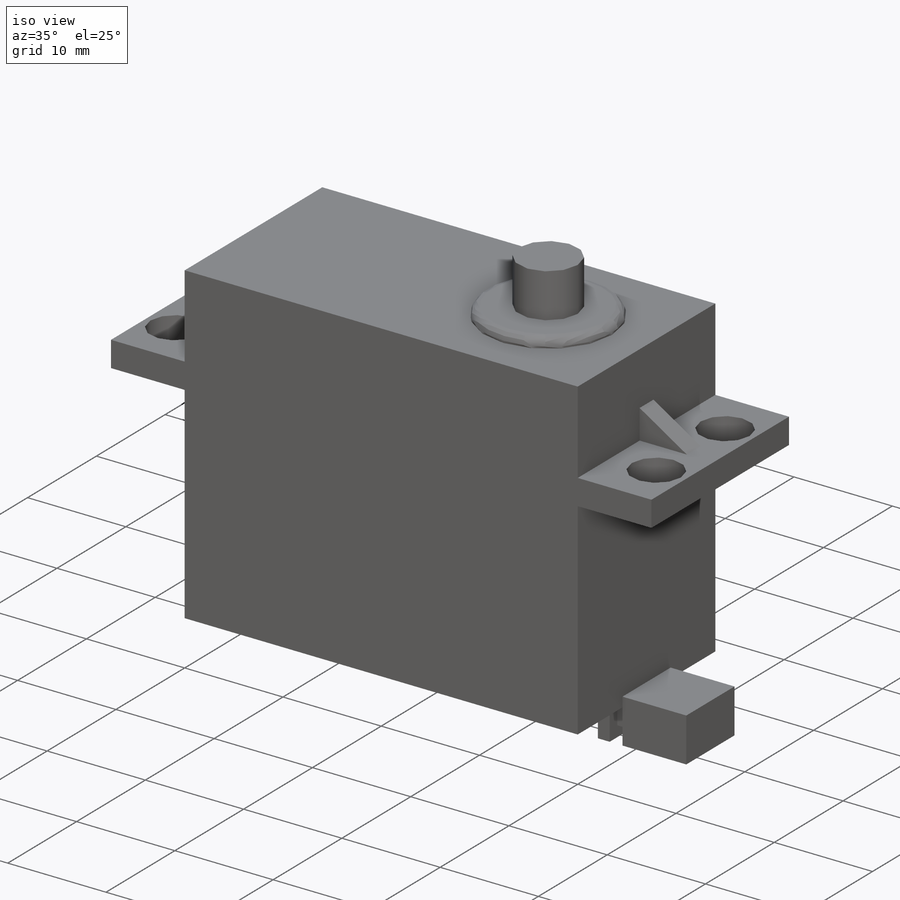
[diagram: iso view]
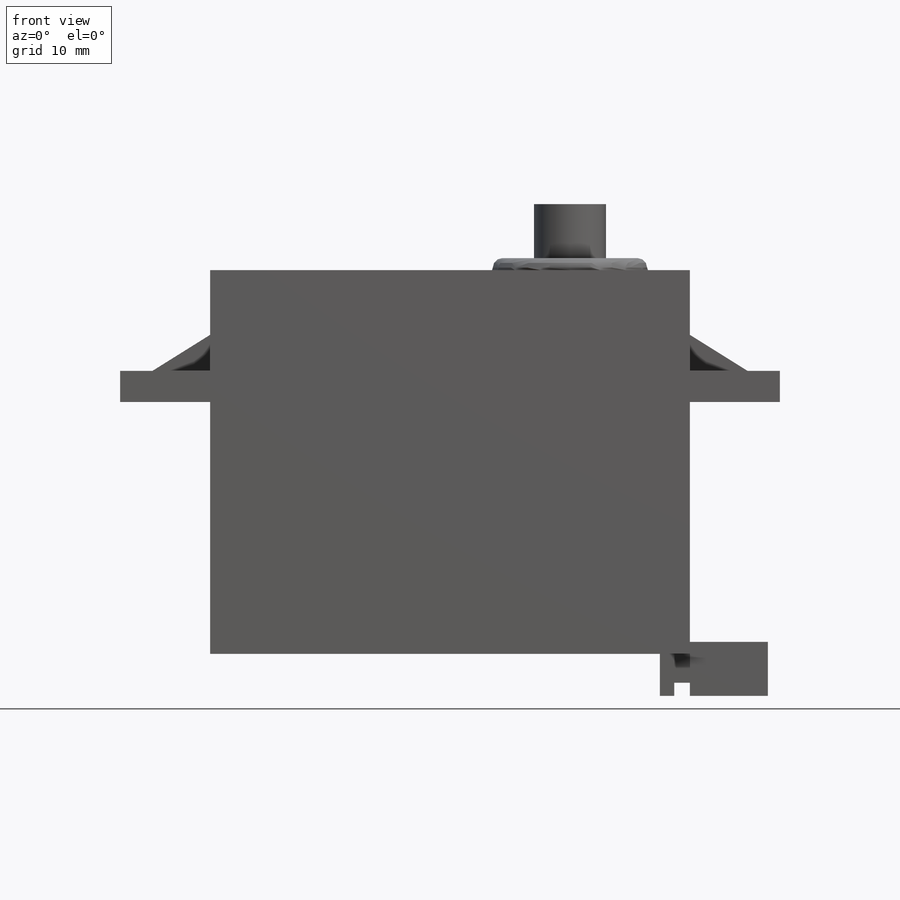
[diagram: front view]
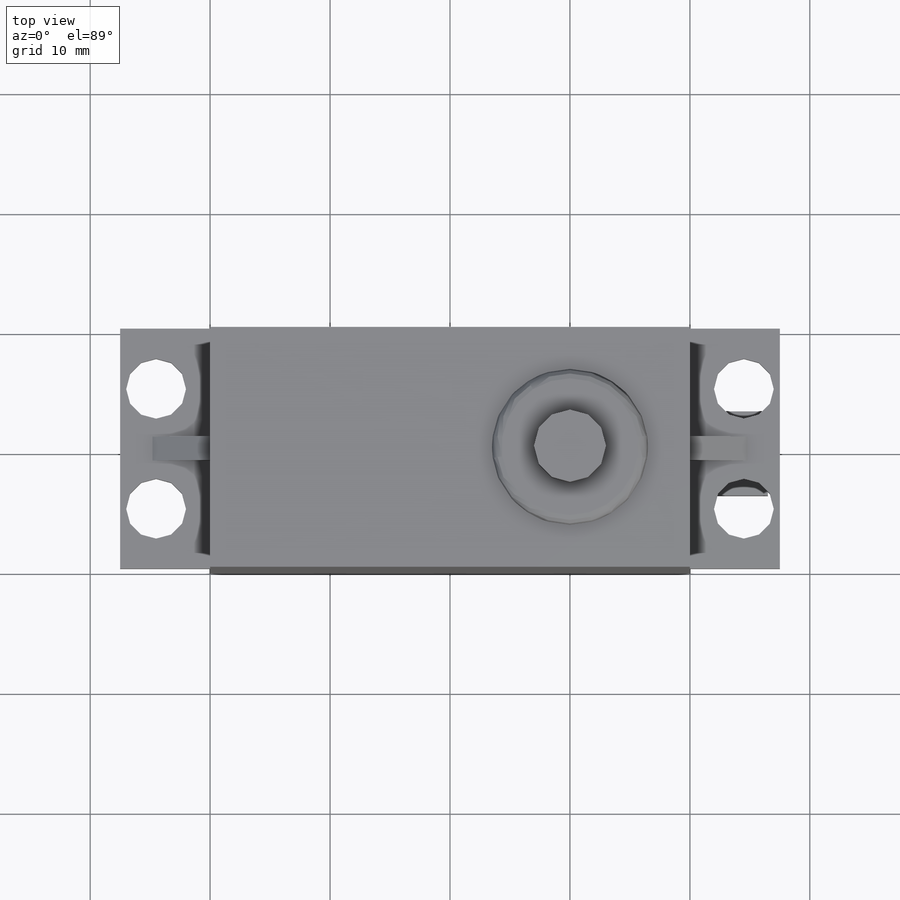
[diagram: top view]
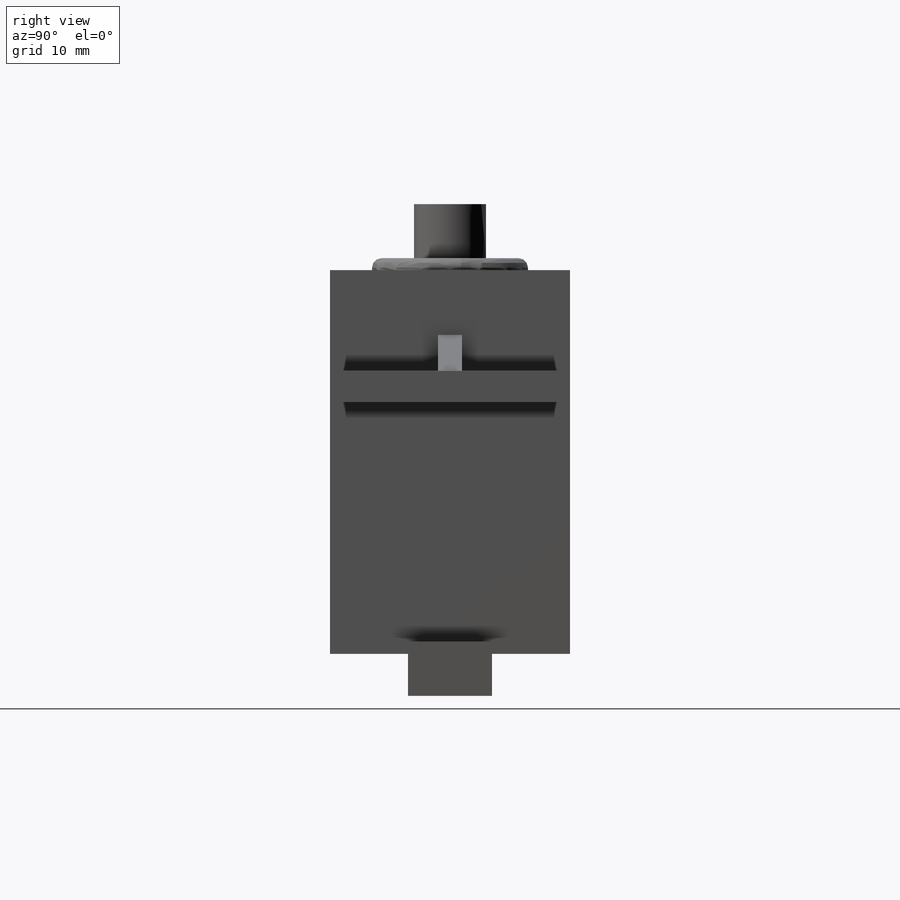
[diagram: right view]
SOLIDWORKS PART (.sldprt)
format: sldprt  version: not decoded by parser v0  size: 207,872 bytes
history: native  units: mm
features: sketch x10, fillet x5, cut_extrude x4, plane x3, extrude x2, material x1 + 1 further entry (+9 scaffold rows collapsed)
feature tree (35):
  scaffold x9  (default folders/planes/origin — collapsed)
  material  "Matériau <non spécifié>"
  "Corps de surface"
  plane  "Face"
  plane  "Dessus"
  plane  "Droite"
  sketch  "Esquisse1"  dims[D1=40.0mm D2=32.0mm]
  extrude  "Extrusion1"  Depth=20mm
  sketch  "Esquisse2"  dims[D2=13.0mm D1=10.0mm]
  extrude  "Extrusion2"  Depth=1mm
  fillet  "Congé1"  Radius=0.8mm
  sketch  "Esquisse3"  dims[D1=6.0mm]
  fillet  "Extrusion3"  Radius=4.5mm
  sketch  "Esquisse4"  dims[D1=7.0mm D2=9.0mm D3=2.5mm]
  fillet  "Extrusion4"  Radius=3.5mm
  sketch  "Esquisse5"  dims[D1=1.1mm D2=1.3mm D3=0.2mm]
  cut_extrude  "Enlèv. mat.-Extru.2"  [1 undecoded]
  sketch  "Esquisse9"  dims[D1=1.1mm]
  cut_extrude  "Enlèv. mat.-Extru.5"  [1 undecoded]
  sketch  "Esquisse7"  dims[D1=2.0mm D2=2.7mm D3=2.7mm]
  cut_extrude  "Enlèv. mat.-Extru.4"  Depth=4.5mm
  sketch  "Esquisse8"  dims[D1=21.0mm D2=2.6mm D3=55.0mm]
  fillet  "Extrusion6"  [1 undecoded]
  sketch  "Esquisse10"  dims[D1=4.8mm D2=3.0mm]
  fillet  "Extrusion7"  Radius=2mm
  sketch  "Esquisse11"  dims[D1=5.0mm D2=10.0mm D3=3.0mm]
  cut_extrude  "Enlèv. mat.-Extru.6"  [1 undecoded]
decode coverage: 17 of 21 modeling features carry decoded parameters; 1 rows unclassified (native names shown)
note: 4 parameter values undecoded
summary: no parameter record found for 4 features
note: suppression state not decoded; provenance and decode notes live in map.json
